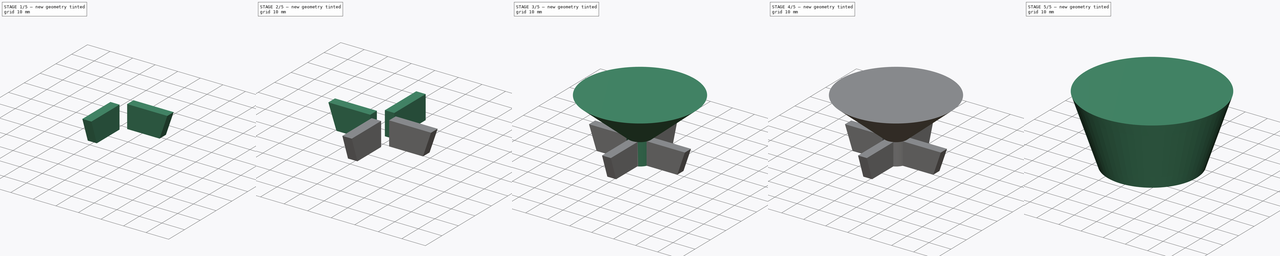
[diagram: build sequence overview — one tinted view per stage of 5, left to right]
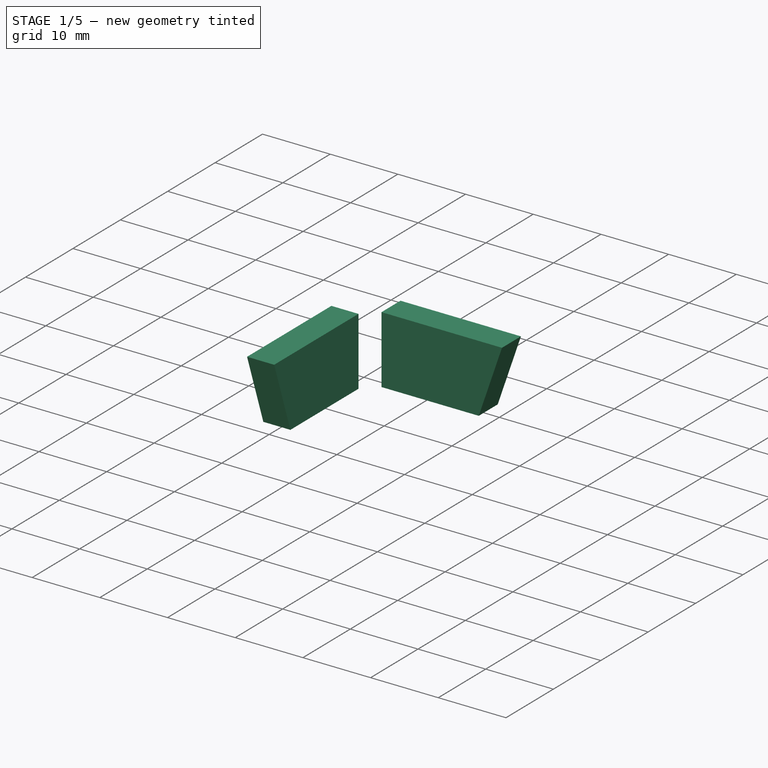
[diagram: stage 1 of 5 — iso view after this stage's code; geometry added in this stage tinted green]
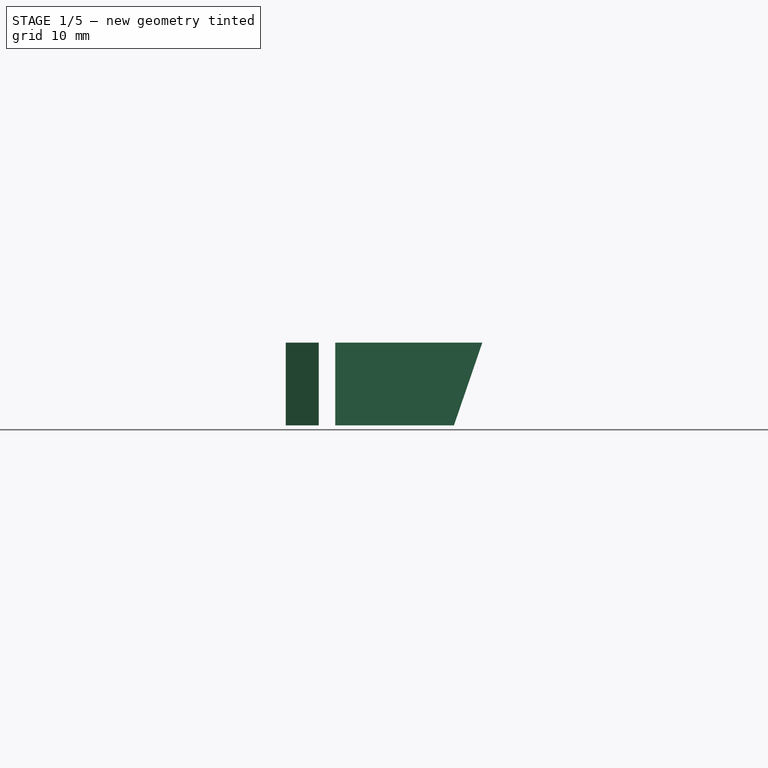
[diagram: stage 1 of 5 — front view after this stage's code; geometry added in this stage tinted green]
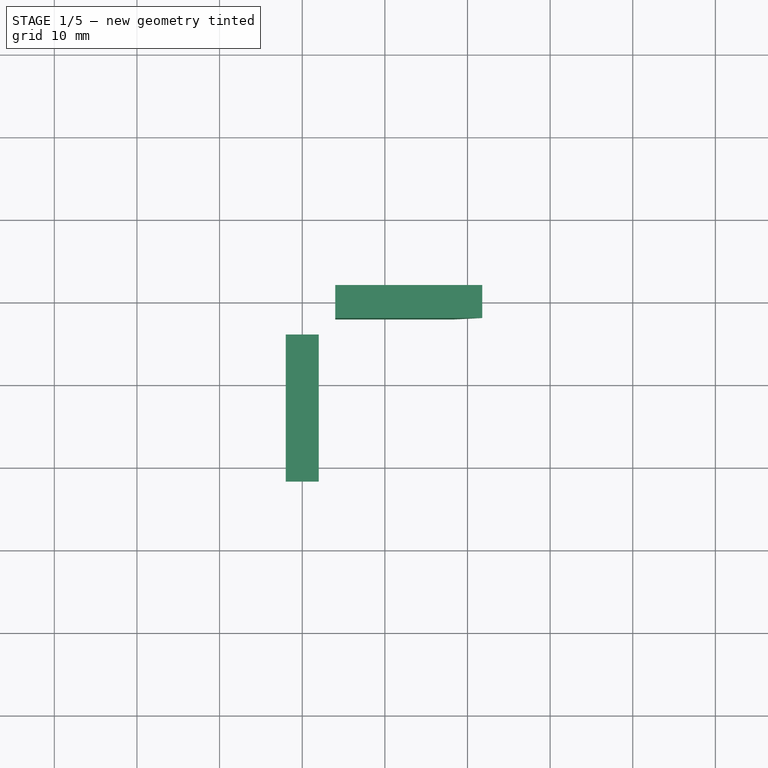
[diagram: stage 1 of 5 — top view after this stage's code; geometry added in this stage tinted green]
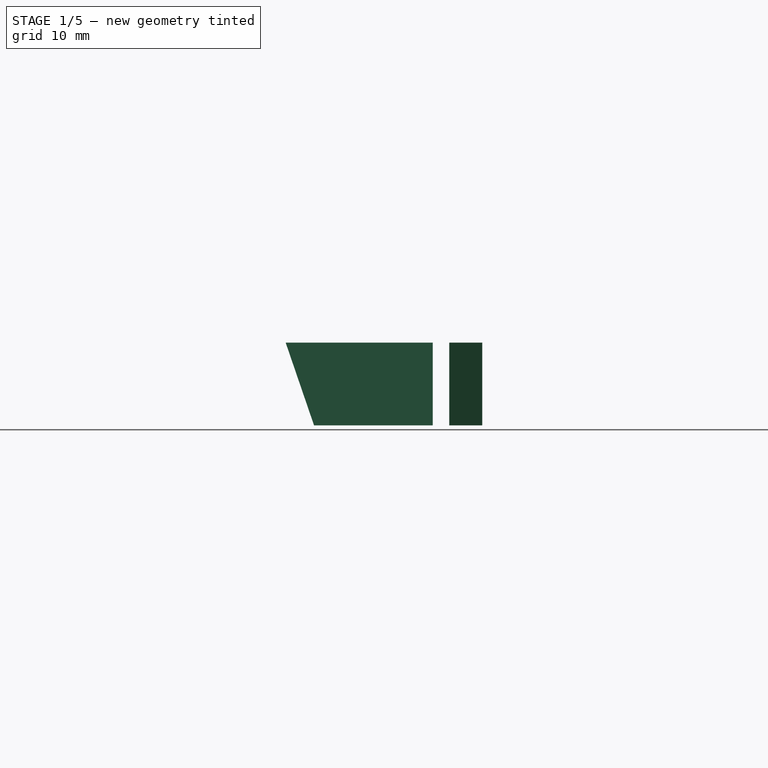
[diagram: stage 1 of 5 — right view after this stage's code; geometry added in this stage tinted green]
FCSTD DOCUMENT  (FreeCAD 0.16R6712 (Git))
Label: tapa_olla
License: All rights reserved
LicenseURL: http://en.wikipedia.org/wiki/All_rights_reserved
objects: Part::Box×4, Sketcher::SketchObject×4, PartDesign::Pocket×4, Part::Cone×3, Part::MultiFuse×3, Part::Cut×2, Part::Cylinder×2
note: 26 computed .brp shape members not serialized (recipe doc carries the construction recipe); baked Part::Feature solids carry a one-line shape summary decoded from their .brp

FEATURE [Part::Box] Box002  label="Cubo002"
  Height = 10
  Length = 4
  Placement = pos=(2,-4,0) rot=(0,0,1;3.14159rad)
  Width = 19
FEATURE [Sketcher::SketchObject] Sketch002
  ExternalGeometry = -> [Box002]
  Placement = pos=(-2,-4,0) rot=(-0.57735,0.57735,0.57735;4.18879rad)
  Support = -> Box002 [Face2]
  sketch-geometry (4):
    g0: LineSegment StartX=14.3661 StartY=0 StartZ=0 EndX=19 EndY=0 EndZ=0
    g1: LineSegment StartX=19 StartY=0 StartZ=0 EndX=19 EndY=10 EndZ=0
    g2: LineSegment StartX=19 StartY=10 StartZ=0 EndX=17.7957 EndY=10 EndZ=0
    g3: LineSegment StartX=17.7957 StartY=10 StartZ=0 EndX=14.3661 EndY=0 EndZ=0
  constraints (8):
    c: PointOnObject(g0,g-4)
    c: Coincident(g0,g-4)
    c: Coincident(g0,g1)
    c: Coincident(g1,g-3)
    c: Coincident(g1,g2)
    c: Horizontal(g2)
    c: Coincident(g2,g3)
    c: Coincident(g3,g0)
FEATURE [PartDesign::Pocket] Pocket002
  Length = 5
  Placement = pos=(2,-4,0) rot=(0,0,1;3.14159rad)
  Sketch = -> Sketch002
  Type = 0
FEATURE [Part::Box] Box003  label="Cubo003"
  Height = 10
  Length = 4
  Placement = pos=(4,2,0) rot=(0,0,-1;1.5708rad)
  Width = 19
FEATURE [Sketcher::SketchObject] Sketch003
  ExternalGeometry = -> [Box003]
  Placement = pos=(4,-2,0) rot=(1,0,0;1.5708rad)
  Support = -> Box003 [Face2]
  sketch-geometry (4):
    g0: LineSegment StartX=14.3661 StartY=0 StartZ=0 EndX=19 EndY=0 EndZ=0
    g1: LineSegment StartX=19 StartY=0 StartZ=0 EndX=19 EndY=10 EndZ=0
    g2: LineSegment StartX=19 StartY=10 StartZ=0 EndX=17.7957 EndY=10 EndZ=0
    g3: LineSegment StartX=17.7957 StartY=10 StartZ=0 EndX=14.3661 EndY=0 EndZ=0
  constraints (8):
    c: PointOnObject(g0,g-4)
    c: Coincident(g0,g-4)
    c: Coincident(g0,g1)
    c: Coincident(g1,g-3)
    c: Coincident(g1,g2)
    c: Horizontal(g2)
    c: Coincident(g2,g3)
    c: Coincident(g3,g0)
FEATURE [PartDesign::Pocket] Pocket003
  Length = 5
  Placement = pos=(4,2,0) rot=(0,0,-1;1.5708rad)
  Sketch = -> Sketch003
  Type = 0
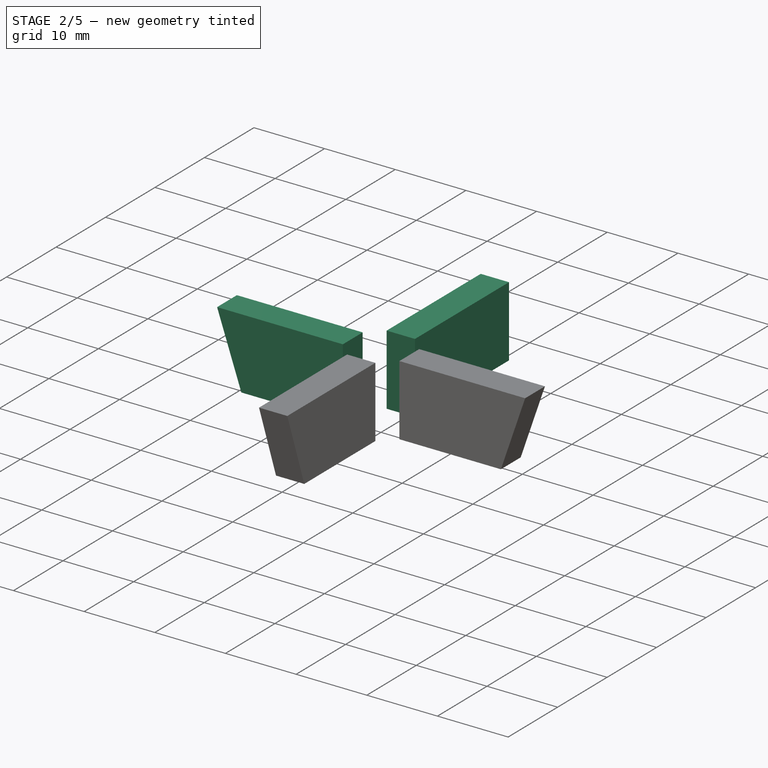
[diagram: stage 2 of 5 — iso view after this stage's code; geometry added in this stage tinted green]
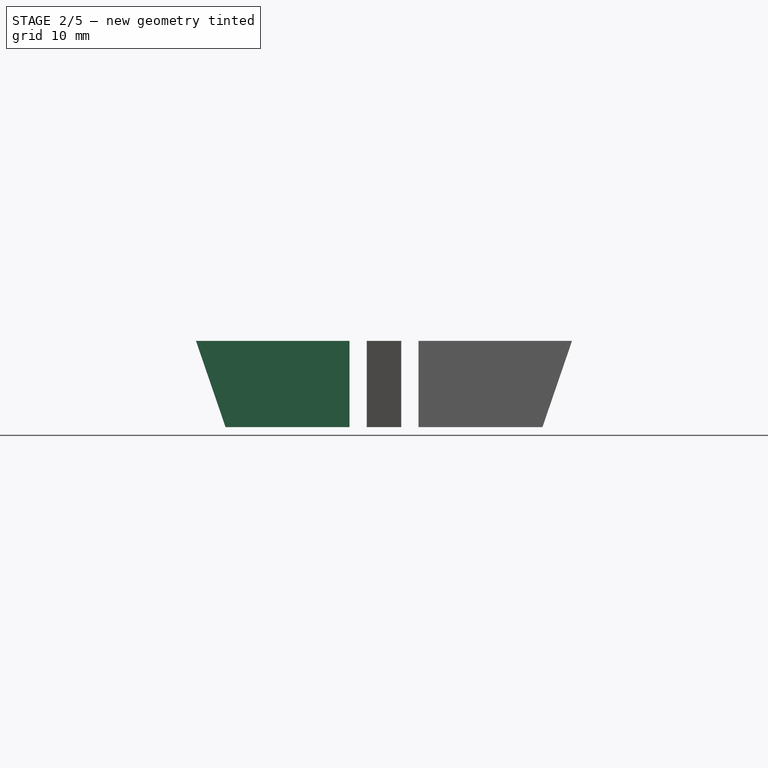
[diagram: stage 2 of 5 — front view after this stage's code; geometry added in this stage tinted green]
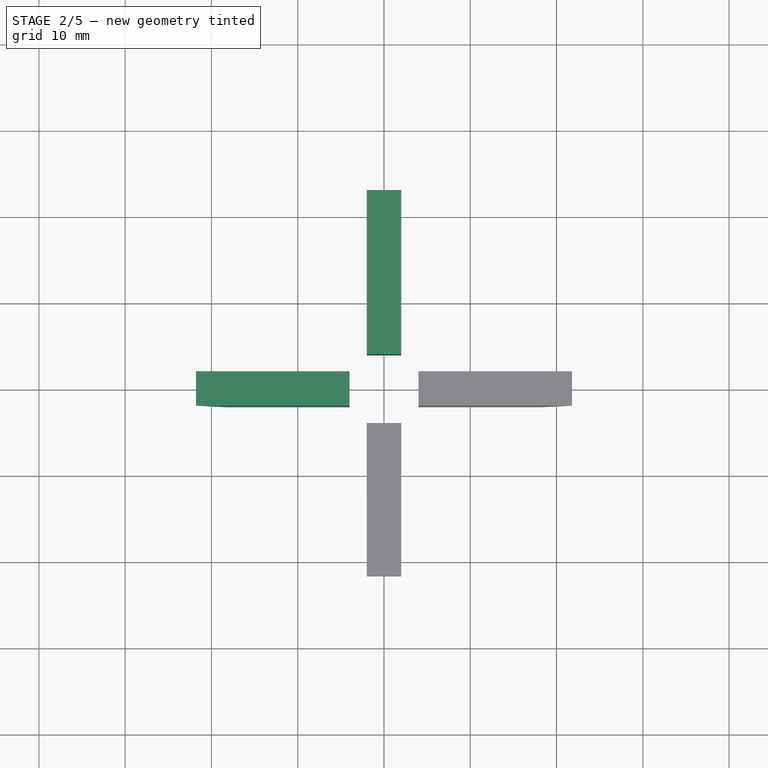
[diagram: stage 2 of 5 — top view after this stage's code; geometry added in this stage tinted green]
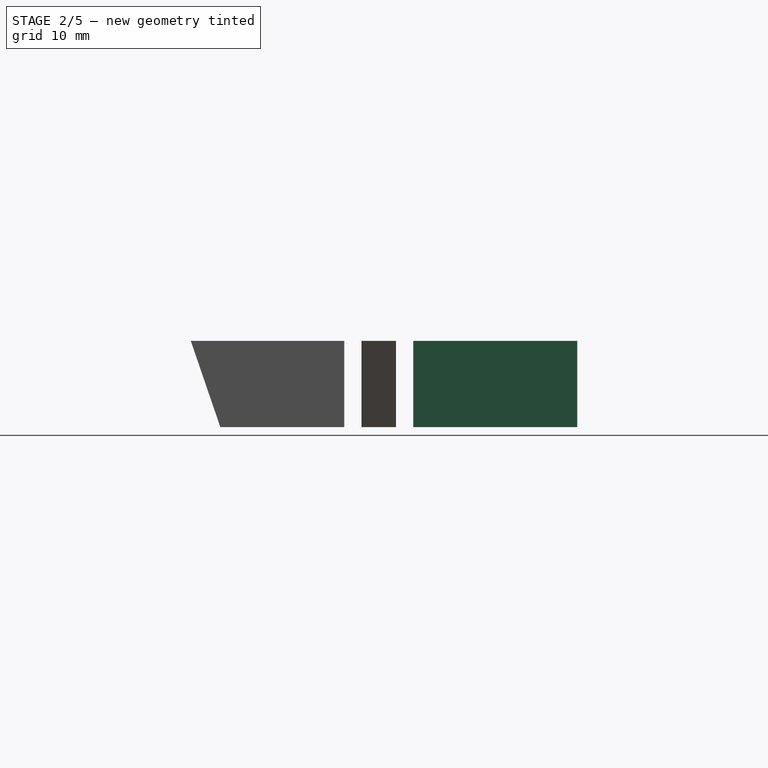
[diagram: stage 2 of 5 — right view after this stage's code; geometry added in this stage tinted green]
FEATURE [Part::Box] Box  label="Cubo"
  Height = 10
  Length = 4
  Placement = pos=(-2,4,0) rot=(0,0,1;0rad)
  Width = 19
FEATURE [Part::Box] Box001  label="Cubo001"
  Height = 10
  Length = 4
  Placement = pos=(-4,-2,0) rot=(0,0,1;1.5708rad)
  Width = 19
FEATURE [Sketcher::SketchObject] Sketch001
  ExternalGeometry = -> [Box001]
  Placement = pos=(-4,2,0) rot=(0,0.707107,0.707107;3.14159rad)
  Support = -> Box001 [Face2]
  sketch-geometry (4):
    g0: LineSegment StartX=14.3661 StartY=0 StartZ=0 EndX=19 EndY=0 EndZ=0
    g1: LineSegment StartX=19 StartY=0 StartZ=0 EndX=19 EndY=10 EndZ=0
    g2: LineSegment StartX=19 StartY=10 StartZ=0 EndX=17.7957 EndY=10 EndZ=0
    g3: LineSegment StartX=17.7957 StartY=10 StartZ=0 EndX=14.3661 EndY=0 EndZ=0
  constraints (8):
    c: PointOnObject(g0,g-4)
    c: Coincident(g0,g-4)
    c: Coincident(g0,g1)
    c: Coincident(g1,g-3)
    c: Coincident(g1,g2)
    c: Horizontal(g2)
    c: Coincident(g2,g3)
    c: Coincident(g3,g0)
FEATURE [PartDesign::Pocket] Pocket001
  Length = 5
  Placement = pos=(-4,-2,0) rot=(0,0,1;1.5708rad)
  Sketch = -> Sketch001
  Type = 0
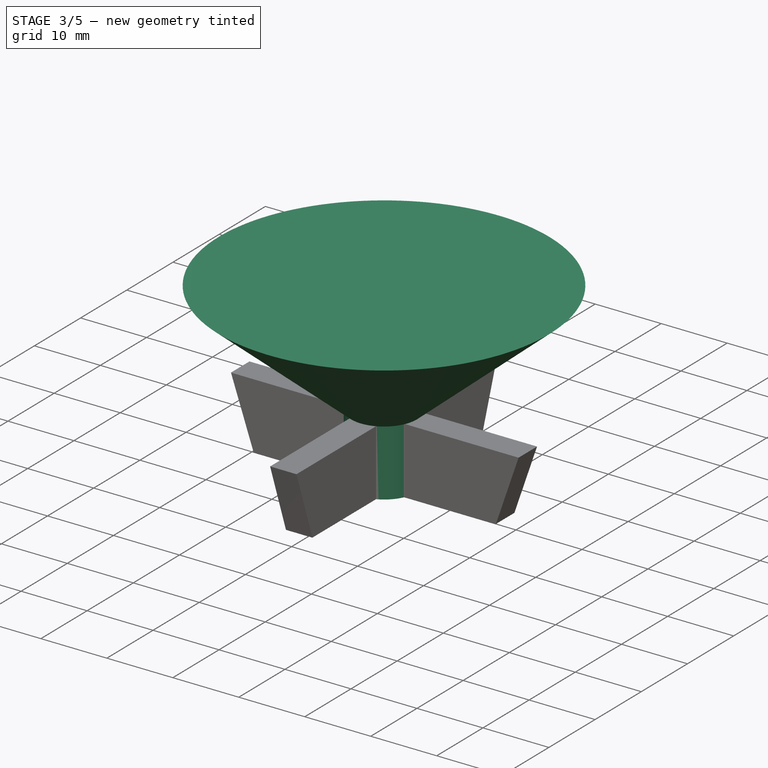
[diagram: stage 3 of 5 — iso view after this stage's code; geometry added in this stage tinted green]
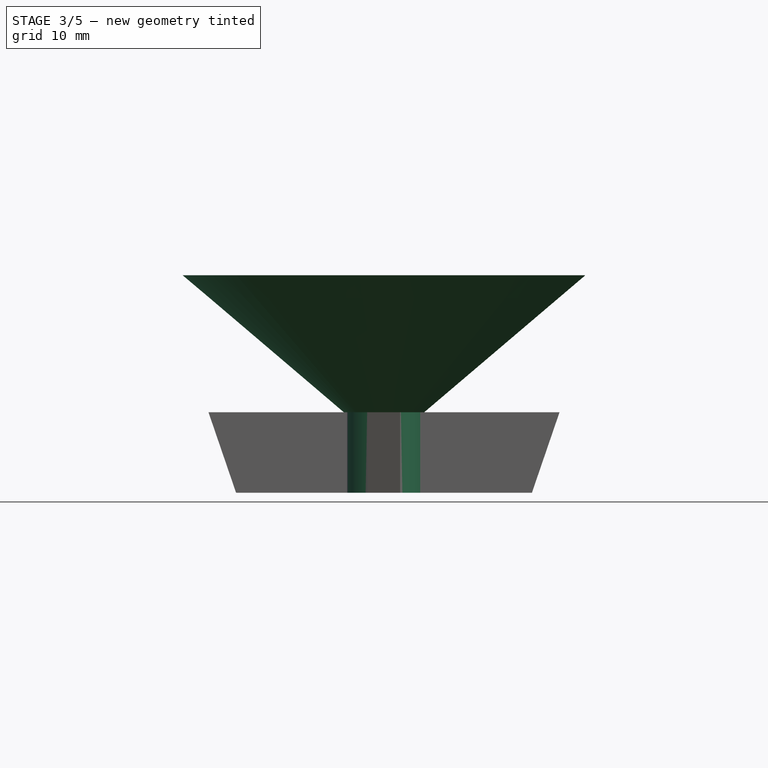
[diagram: stage 3 of 5 — front view after this stage's code; geometry added in this stage tinted green]
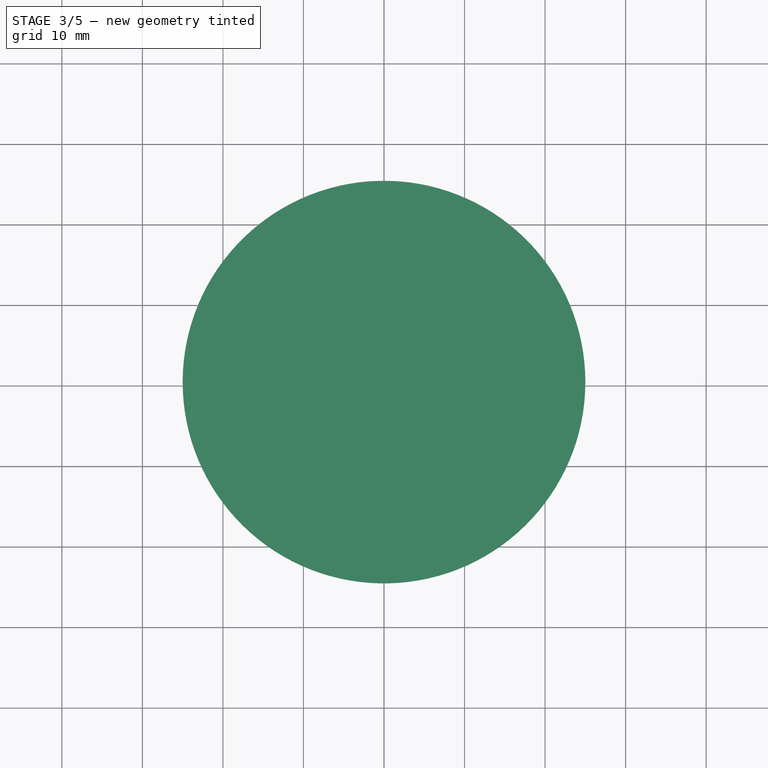
[diagram: stage 3 of 5 — top view after this stage's code; geometry added in this stage tinted green]
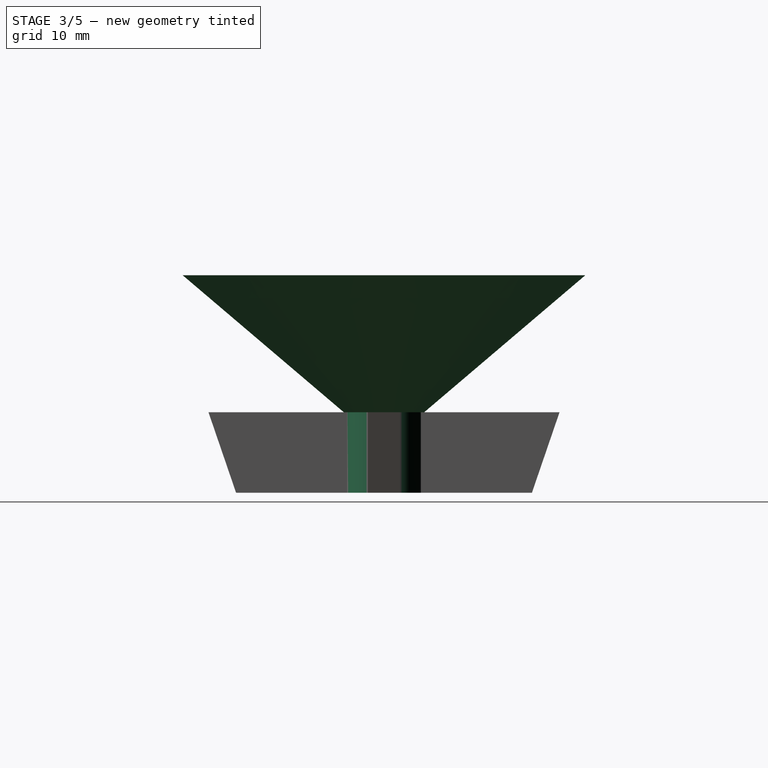
[diagram: stage 3 of 5 — right view after this stage's code; geometry added in this stage tinted green]
FEATURE [Part::Cylinder] Cylinder001  label="Cilindro001"
  Angle = 360
  Height = 12
  Radius = 5
FEATURE [Part::Cone] Cone002  label="Soporte"
  Angle = 360
  Height = 17
  Placement = pos=(0,0,10) rot=(0,0,1;0rad)
  Radius1 = 5
  Radius2 = 25
FEATURE [Sketcher::SketchObject] Sketch
  ExternalGeometry = -> [Box]
  Placement = pos=(2,4,0) rot=(0.57735,0.57735,0.57735;2.0944rad)
  Support = -> Box [Face2]
  sketch-geometry (4):
    g0: LineSegment StartX=14.3661 StartY=0 StartZ=0 EndX=19 EndY=0 EndZ=0
    g1: LineSegment StartX=19 StartY=0 StartZ=0 EndX=19 EndY=10 EndZ=0
    g2: LineSegment StartX=19 StartY=10 StartZ=0 EndX=17.7957 EndY=10 EndZ=0
    g3: LineSegment StartX=17.7957 StartY=10 StartZ=0 EndX=14.3661 EndY=0 EndZ=0
  constraints (8):
    c: PointOnObject(g0,g-4)
    c: Coincident(g0,g-4)
    c: Coincident(g0,g1)
    c: Coincident(g1,g-3)
    c: Coincident(g1,g2)
    c: Horizontal(g2)
    c: Coincident(g2,g3)
    c: Coincident(g3,g0)
FEATURE [PartDesign::Pocket] Pocket
  Length = 5
  Placement = pos=(-2,4,0) rot=(0,0,1;0rad)
  Sketch = -> Sketch
  Type = 0
FEATURE [Part::MultiFuse] Fusion
  Shapes = -> [Pocket,Pocket001,Pocket002,Pocket003]
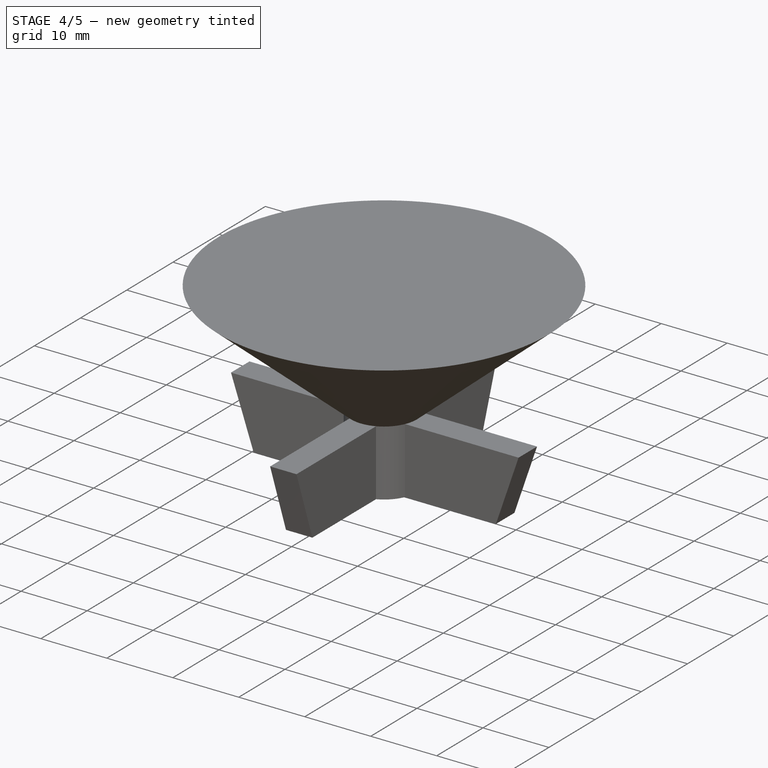
[diagram: stage 4 of 5 — iso view after this stage's code; geometry added in this stage tinted green]
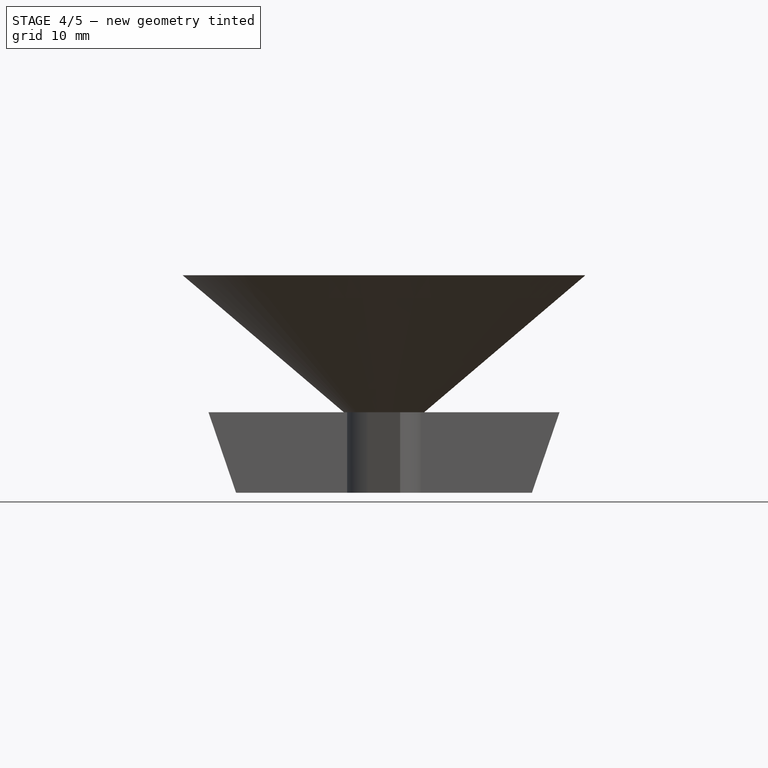
[diagram: stage 4 of 5 — front view after this stage's code; geometry added in this stage tinted green]
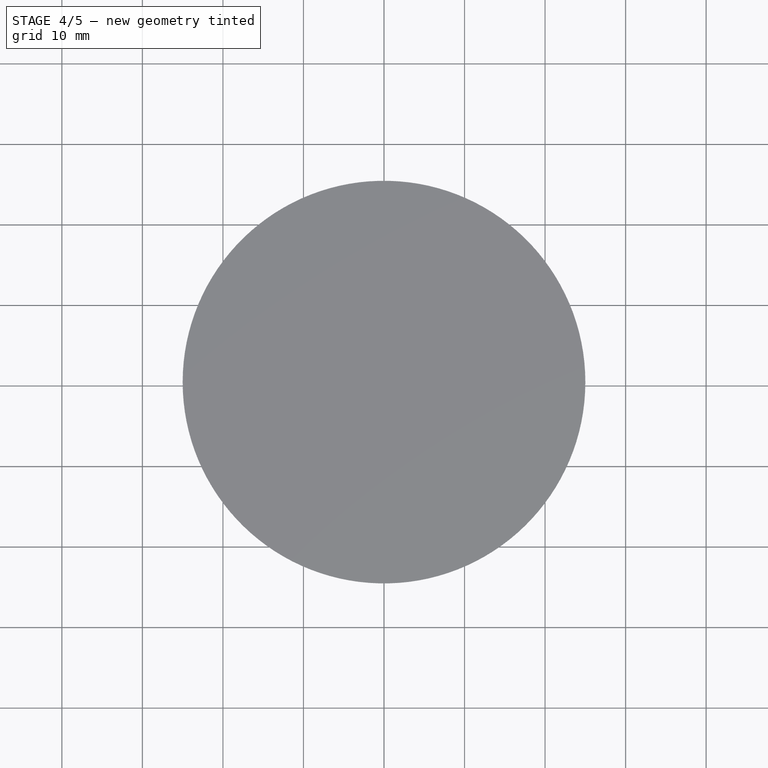
[diagram: stage 4 of 5 — top view after this stage's code; geometry added in this stage tinted green]
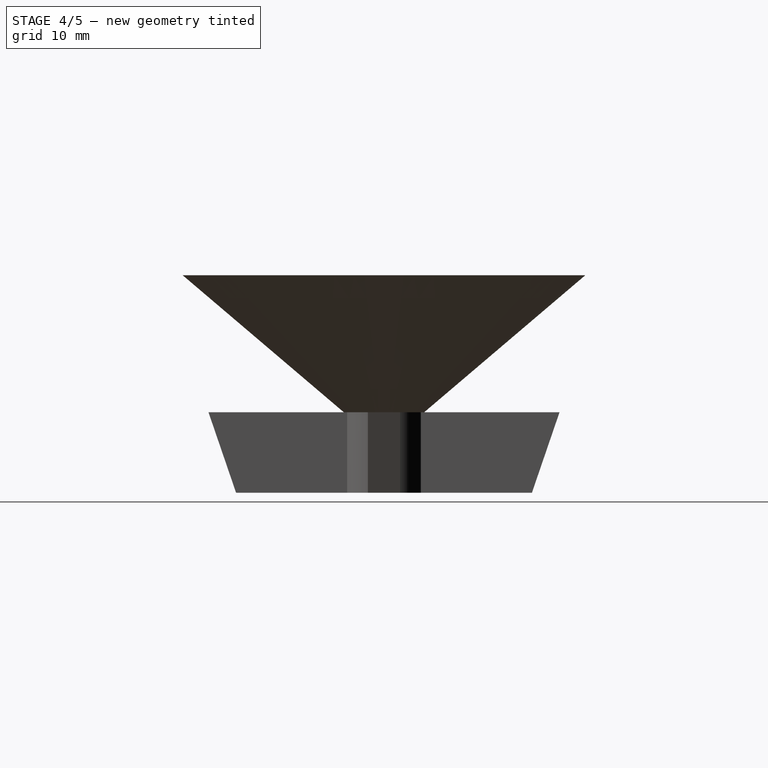
[diagram: stage 4 of 5 — right view after this stage's code; geometry added in this stage tinted green]
FEATURE [Part::Cylinder] Cylinder  label="Cilindro"
  Angle = 360
  Height = 9
  Radius = 3.5
FEATURE [Part::Cut] Cut001  label="Tuerca"
  Base = -> Cylinder001
  Tool = -> Cylinder
FEATURE [Part::MultiFuse] Fusion001
  Shapes = -> [Cut001,Fusion,Cone002]
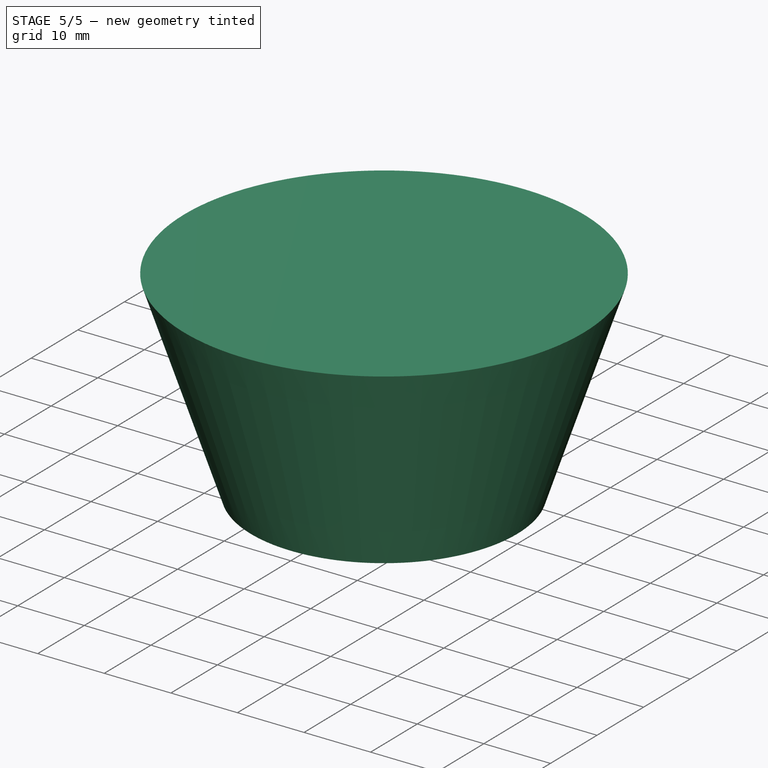
[diagram: stage 5 of 5 — iso view after this stage's code; geometry added in this stage tinted green]
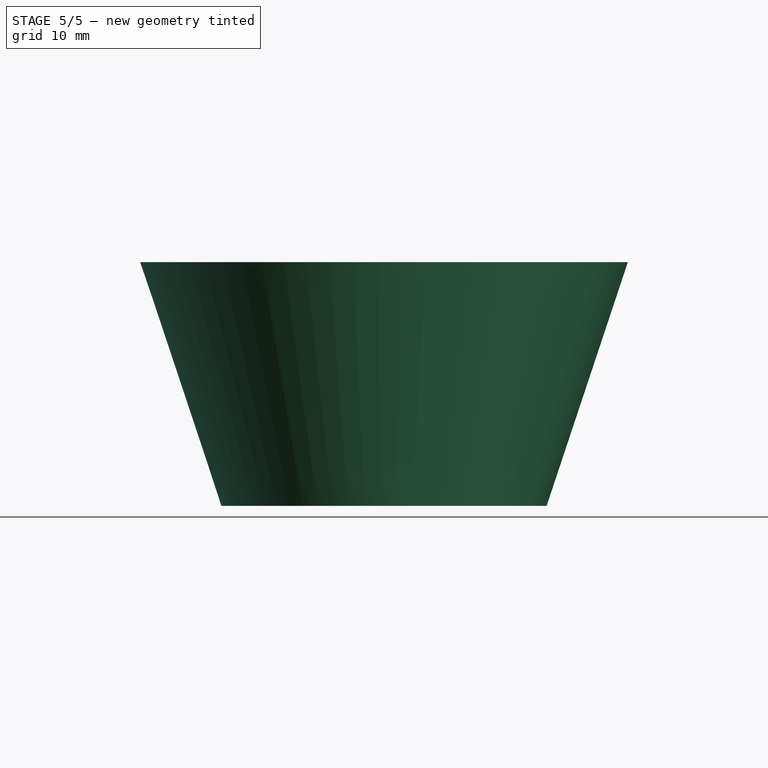
[diagram: stage 5 of 5 — front view after this stage's code; geometry added in this stage tinted green]
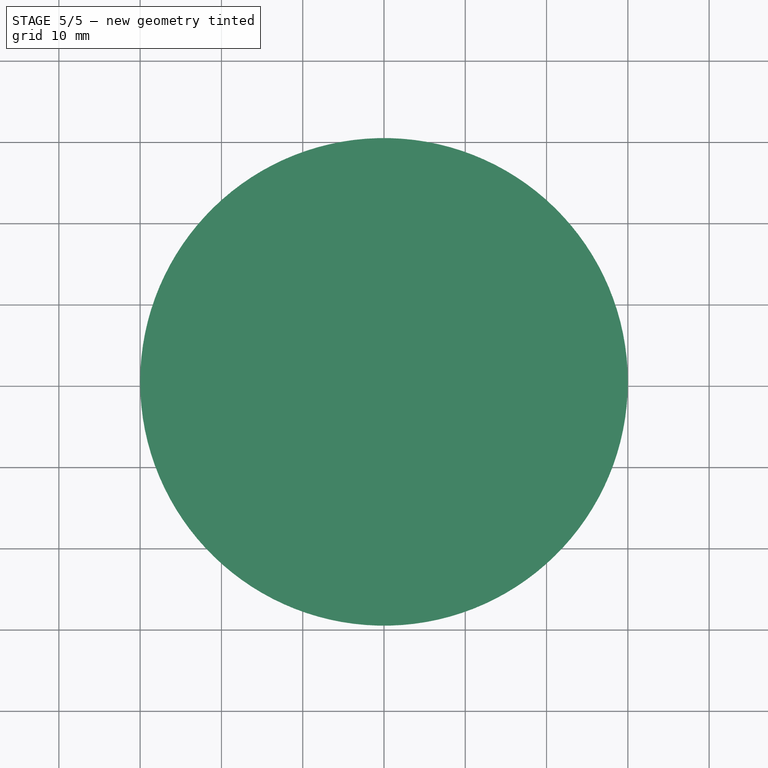
[diagram: stage 5 of 5 — top view after this stage's code; geometry added in this stage tinted green]
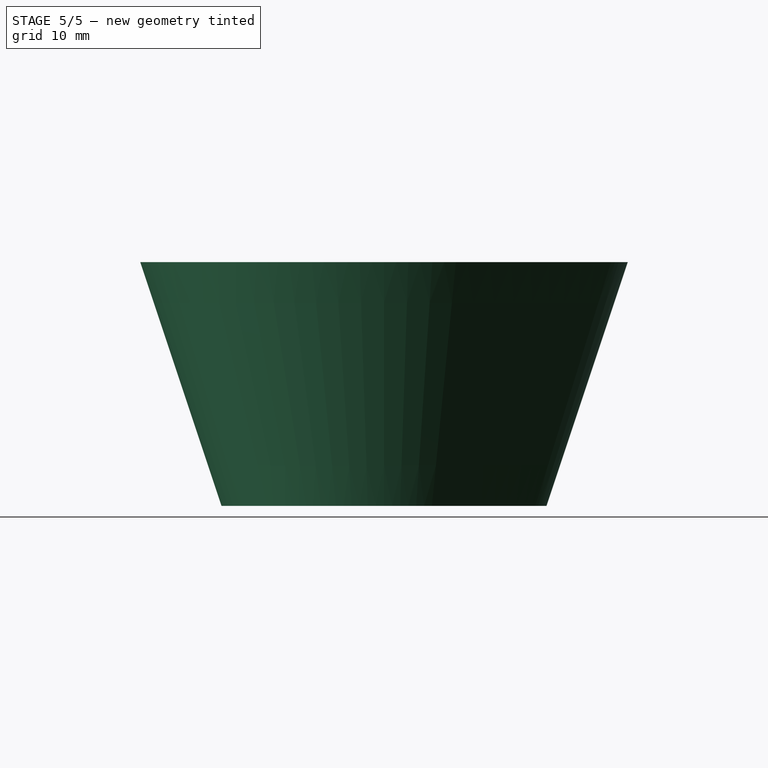
[diagram: stage 5 of 5 — right view after this stage's code; geometry added in this stage tinted green]
FEATURE [Part::Cone] Cone  label="Cono"
  Angle = 360
  Height = 30
  Radius1 = 20
  Radius2 = 30
FEATURE [Part::Cone] Cone001  label="Cono001"
  Angle = 360
  Height = 27
  Radius1 = 17
  Radius2 = 27
FEATURE [Part::Cut] Cut  label="Mango"
  Base = -> Cone
  Tool = -> Cone001
FEATURE [Part::MultiFuse] Fusion002  label="Tapon_olla"
  Shapes = -> [Cut,Fusion001]
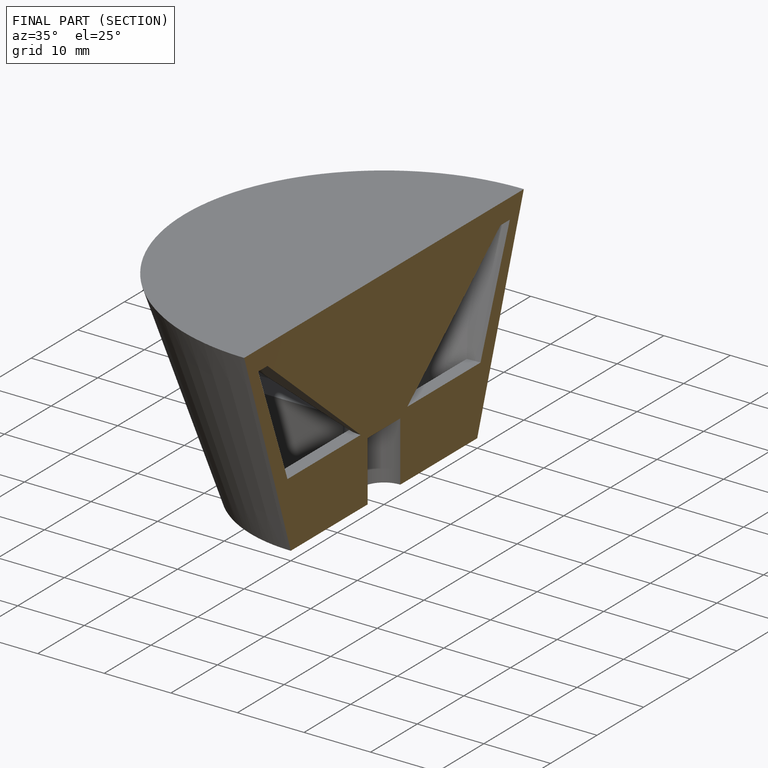
[diagram: finished part — half-section view (interior)]
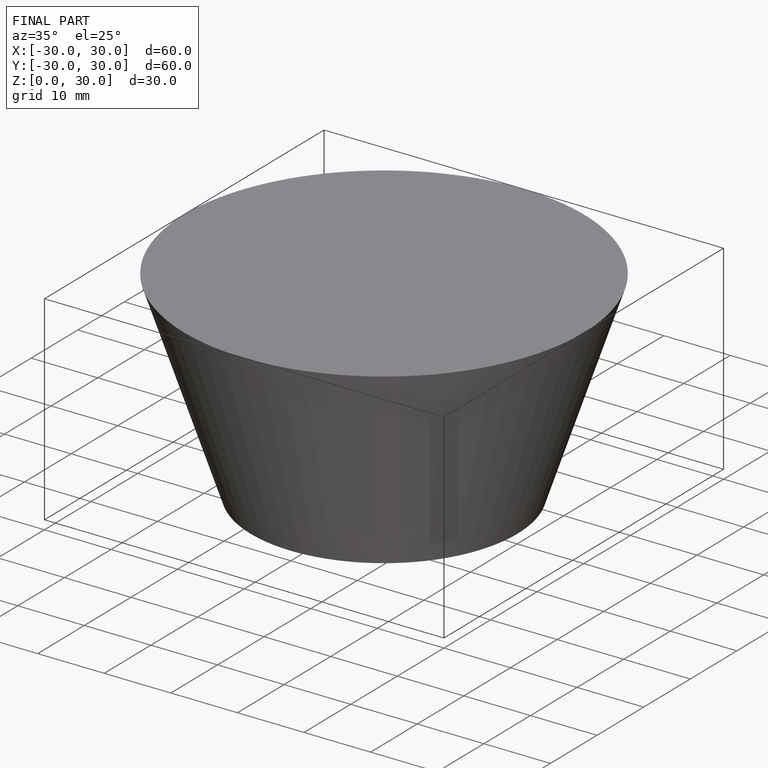
[diagram: finished part — iso view with bounding-box wireframe]
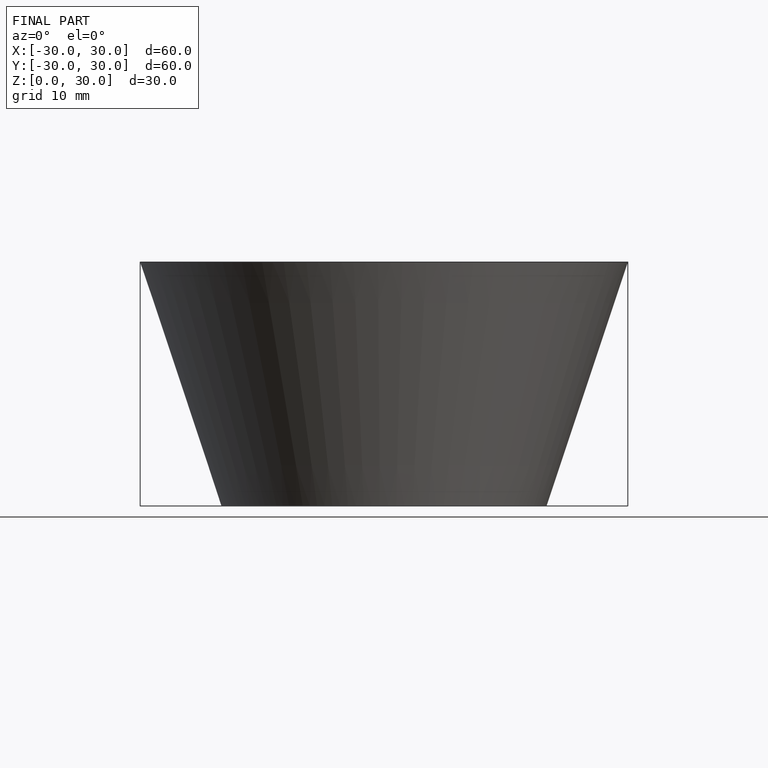
[diagram: finished part — front view with bounding-box wireframe]
